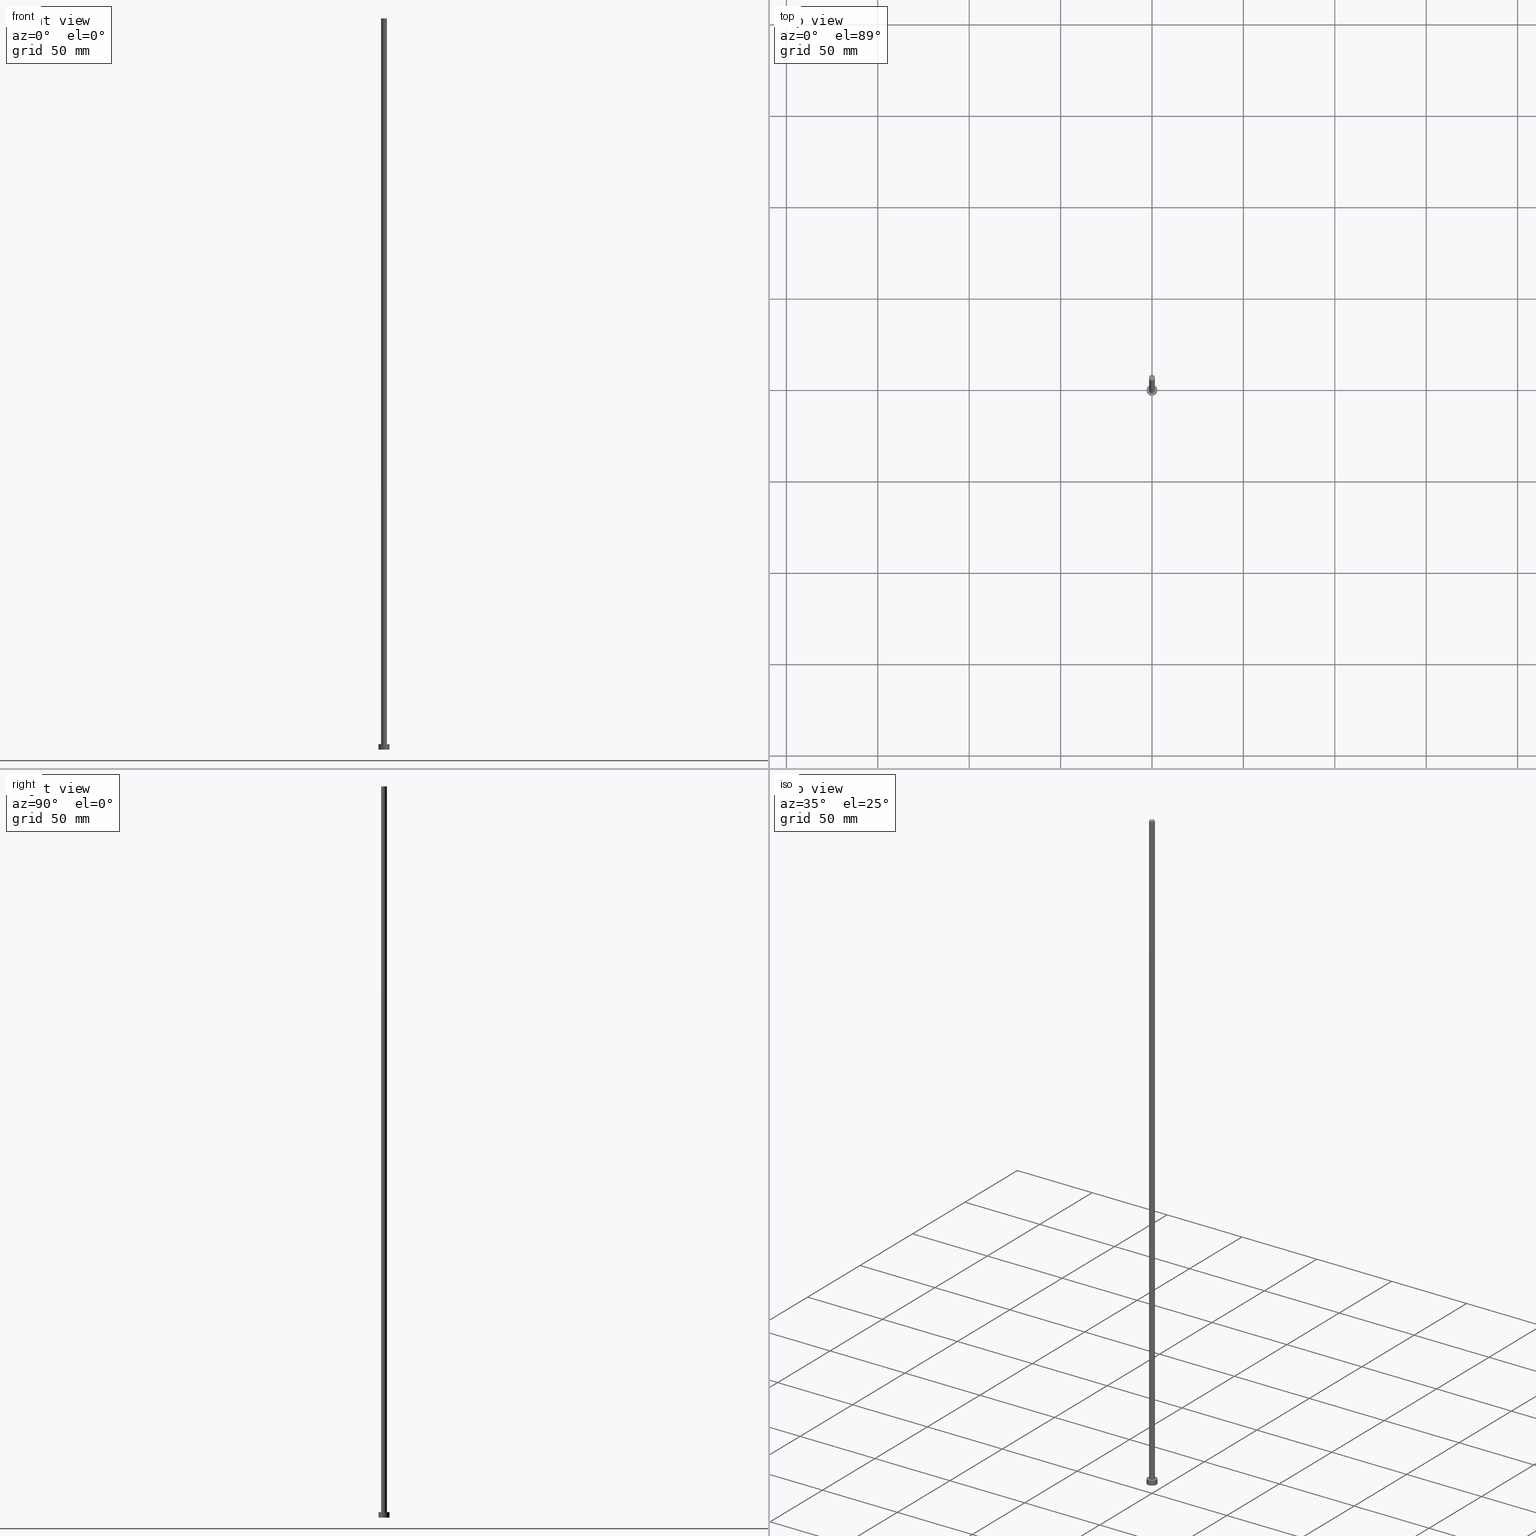
[diagram: canonical four-view strip — front | top / right | iso, engineering-drawing reading convention]
A machine part, canonical four-view strip (front | top / right | iso — engineering-drawing reading convention). The complete STEP part file that produces these views, byte-faithful:
ISO-10303-21;
HEADER;
FILE_DESCRIPTION (( 'STEP AP203' ),
    '1' );
FILE_NAME ('0637.STEP',
    '2023-02-12T12:43:47',
    ( '' ),
    ( '' ),
    'SwSTEP 2.0',
    'SolidWorks 2019',
    '' );
FILE_SCHEMA (( 'CONFIG_CONTROL_DESIGN' ));
ENDSEC;

DATA;
#1 = LINE ( 'NONE', #47, #206 ) ;
#2 = ORIENTED_EDGE ( 'NONE', *, *, #76, .T. ) ;
#3 = AXIS2_PLACEMENT_3D ( 'NONE', #122, #73, #79 ) ;
#4 = EDGE_CURVE ( 'NONE', #248, #210, #1, .T. ) ;
#5 = DIRECTION ( 'NONE',  ( -1.000000000000000000, 0.000000000000000000, 0.000000000000000000 ) ) ;
#6 = DIRECTION ( 'NONE',  ( 1.000000000000000000, 0.000000000000000000, 0.000000000000000000 ) ) ;
#7 =( NAMED_UNIT ( * ) SI_UNIT ( $, .STERADIAN. ) SOLID_ANGLE_UNIT ( ) );
#8 = APPROVAL_PERSON_ORGANIZATION ( #99, #132, #164 ) ;
#9 = DIRECTION ( 'NONE',  ( -0.000000000000000000, -0.000000000000000000, -1.000000000000000000 ) ) ;
#10 = PLANE ( 'NONE',  #171 ) ;
#11 = CARTESIAN_POINT ( 'NONE',  ( 0.000000000000000000, 0.000000000000000000, 3.000000000000000000 ) ) ;
#12 = AXIS2_PLACEMENT_3D ( 'NONE', #156, #111, #137 ) ;
#13 = APPLICATION_PROTOCOL_DEFINITION ( 'international standard', 'config_control_design', 1994, #108 ) ;
#14 = PERSON_AND_ORGANIZATION ( #16, #141 ) ;
#15 = ORIENTED_EDGE ( 'NONE', *, *, #40, .F. ) ;
#16 = PERSON ( 'NEUR�EN�', 'NEUR�EN�', 'NEUR�EN�', ('NEUR�EN�'), ('NEUR�EN�'), ('NEUR�EN�') ) ;
#17 = DIRECTION ( 'NONE',  ( 1.000000000000000000, 0.000000000000000000, 0.000000000000000000 ) ) ;
#18 = ORIENTED_EDGE ( 'NONE', *, *, #149, .T. ) ;
#19 = AXIS2_PLACEMENT_3D ( 'NONE', #11, #117, #135 ) ;
#20 = FACE_BOUND ( 'NONE', #238, .T. ) ;
#21 = CYLINDRICAL_SURFACE ( 'NONE', #38, 1.600000000000000089 ) ;
#22 = LOCAL_TIME ( 13, 43, 47.00000000000000000, #35 ) ;
#23 = CARTESIAN_POINT ( 'NONE',  ( 0.000000000000000000, 0.000000000000000000, 0.000000000000000000 ) ) ;
#24 = AXIS2_PLACEMENT_3D ( 'NONE', #151, #133, #211 ) ;
#25 = ADVANCED_FACE ( 'NONE', ( #20, #226 ), #109, .T. ) ;
#26 = DIRECTION ( 'NONE',  ( 1.000000000000000000, 0.000000000000000000, 0.000000000000000000 ) ) ;
#27 = CC_DESIGN_PERSON_AND_ORGANIZATION_ASSIGNMENT ( #56, #205, ( #44 ) ) ;
#28 = CARTESIAN_POINT ( 'NONE',  ( 0.000000000000000000, 0.000000000000000000, 0.000000000000000000 ) ) ;
#29 = PLANE ( 'NONE',  #143 ) ;
#30 = LINE ( 'NONE', #194, #123 ) ;
#31 = CC_DESIGN_PERSON_AND_ORGANIZATION_ASSIGNMENT ( #142, #162, ( #115 ) ) ;
#32 = CALENDAR_DATE ( 2023, 12, 2 ) ;
#33 = VECTOR ( 'NONE', #113, 1000.000000000000000 ) ;
#34 = PERSON_AND_ORGANIZATION_ROLE ( 'design_owner' ) ;
#35 = COORDINATED_UNIVERSAL_TIME_OFFSET ( 1, 0, .AHEAD. ) ;
#36 = APPROVAL_PERSON_ORGANIZATION ( #250, #69, #245 ) ;
#37 = LOCAL_TIME ( 13, 43, 47.00000000000000000, #160 ) ;
#38 = AXIS2_PLACEMENT_3D ( 'NONE', #110, #192, #5 ) ;
#39 = DIRECTION ( 'NONE',  ( 0.000000000000000000, 0.000000000000000000, 1.000000000000000000 ) ) ;
#40 = EDGE_CURVE ( 'NONE', #202, #239, #88, .T. ) ;
#41 = DIRECTION ( 'NONE',  ( 0.000000000000000000, 0.000000000000000000, 1.000000000000000000 ) ) ;
#42 = ORIENTED_EDGE ( 'NONE', *, *, #107, .F. ) ;
#43 = LOCAL_TIME ( 13, 43, 47.00000000000000000, #201 ) ;
#44 = PRODUCT_DEFINITION_FORMATION_WITH_SPECIFIED_SOURCE ( 'LIBOVOLN�', '', #112, .NOT_KNOWN. ) ;
#45 = AXIS2_PLACEMENT_3D ( 'NONE', #253, #41, #17 ) ;
#46 = EDGE_LOOP ( 'NONE', ( #15, #255, #2, #167 ) ) ;
#47 = CARTESIAN_POINT ( 'NONE',  ( -3.000000000000000444, 0.000000000000000000, 3.000000000000000000 ) ) ;
#48 = DIRECTION ( 'NONE',  ( 0.000000000000000000, 0.000000000000000000, 1.000000000000000000 ) ) ;
#49 = AXIS2_PLACEMENT_3D ( 'NONE', #191, #39, #66 ) ;
#50 = ADVANCED_FACE ( 'NONE', ( #127 ), #21, .T. ) ;
#51 = APPLICATION_CONTEXT ( 'configuration controlled 3d designs of mechanical parts and assemblies' ) ;
#52 = CARTESIAN_POINT ( 'NONE',  ( 0.000000000000000000, 0.000000000000000000, 3.000000000000000000 ) ) ;
#53 = CARTESIAN_POINT ( 'NONE',  ( 0.000000000000000000, 0.000000000000000000, 400.0000000000000000 ) ) ;
#54 = CIRCLE ( 'NONE', #247, 1.600000000000000089 ) ;
#55 = DATE_AND_TIME ( #178, #37 ) ;
#56 = PERSON_AND_ORGANIZATION ( #16, #141 ) ;
#57 = DATE_AND_TIME ( #236, #87 ) ;
#58 = DATE_TIME_ROLE ( 'creation_date' ) ;
#59 = CC_DESIGN_APPROVAL ( #69, ( #44 ) ) ;
#60 = AXIS2_PLACEMENT_3D ( 'NONE', #185, #237, #208 ) ;
#61 = ORIENTED_EDGE ( 'NONE', *, *, #190, .T. ) ;
#62 = VERTEX_POINT ( 'NONE', #104 ) ;
#63 = ORIENTED_EDGE ( 'NONE', *, *, #126, .T. ) ;
#64 = AXIS2_PLACEMENT_3D ( 'NONE', #116, #177, #91 ) ;
#65 = AXIS2_PLACEMENT_3D ( 'NONE', #95, #214, #6 ) ;
#66 = DIRECTION ( 'NONE',  ( 1.000000000000000000, 0.000000000000000000, -0.000000000000000000 ) ) ;
#67 = CARTESIAN_POINT ( 'NONE',  ( -1.600000000000000089, 0.000000000000000000, 400.0000000000000000 ) ) ;
#68 = ADVANCED_FACE ( 'NONE', ( #89 ), #172, .T. ) ;
#69 = APPROVAL ( #144, 'NEUR�EN�' ) ;
#70 = FACE_OUTER_BOUND ( 'NONE', #82, .T. ) ;
#71 = LINE ( 'NONE', #175, #227 ) ;
#72 = CARTESIAN_POINT ( 'NONE',  ( -3.000000000000000444, 0.000000000000000000, 0.000000000000000000 ) ) ;
#73 = DIRECTION ( 'NONE',  ( 0.000000000000000000, 0.000000000000000000, 1.000000000000000000 ) ) ;
#74 = CC_DESIGN_PERSON_AND_ORGANIZATION_ASSIGNMENT ( #158, #233, ( #78 ) ) ;
#75 = CALENDAR_DATE ( 2023, 12, 2 ) ;
#76 = EDGE_CURVE ( 'NONE', #150, #209, #103, .T. ) ;
#77 = SECURITY_CLASSIFICATION_LEVEL ( 'unclassified' ) ;
#78 = SECURITY_CLASSIFICATION ( '', '', #77 ) ;
#79 = DIRECTION ( 'NONE',  ( 1.000000000000000000, 0.000000000000000000, 0.000000000000000000 ) ) ;
#80 = ORIENTED_EDGE ( 'NONE', *, *, #222, .F. ) ;
#81 = EDGE_CURVE ( 'NONE', #248, #62, #232, .T. ) ;
#82 = EDGE_LOOP ( 'NONE', ( #61, #120 ) ) ;
#83 = DIRECTION ( 'NONE',  ( -0.000000000000000000, -0.000000000000000000, -1.000000000000000000 ) ) ;
#84 = CC_DESIGN_PERSON_AND_ORGANIZATION_ASSIGNMENT ( #102, #34, ( #112 ) ) ;
#85 = ADVANCED_FACE ( 'NONE', ( #70 ), #29, .T. ) ;
#86 = ORIENTED_EDGE ( 'NONE', *, *, #107, .T. ) ;
#87 = LOCAL_TIME ( 13, 43, 47.00000000000000000, #182 ) ;
#88 = CIRCLE ( 'NONE', #24, 1.600000000000000089 ) ;
#89 = FACE_OUTER_BOUND ( 'NONE', #145, .T. ) ;
#90 = ADVANCED_FACE ( 'NONE', ( #153 ), #242, .T. ) ;
#91 = DIRECTION ( 'NONE',  ( 1.000000000000000000, 0.000000000000000000, 0.000000000000000000 ) ) ;
#92 = CARTESIAN_POINT ( 'NONE',  ( -3.000000000000000444, 0.000000000000000000, 3.000000000000000000 ) ) ;
#93 = APPROVAL_PERSON_ORGANIZATION ( #139, #165, #218 ) ;
#94 = DIRECTION ( 'NONE',  ( -0.000000000000000000, -0.000000000000000000, -1.000000000000000000 ) ) ;
#95 = CARTESIAN_POINT ( 'NONE',  ( 0.000000000000000000, 0.000000000000000000, 3.000000000000000000 ) ) ;
#96 = DIRECTION ( 'NONE',  ( -0.000000000000000000, -0.000000000000000000, -1.000000000000000000 ) ) ;
#97 = ADVANCED_FACE ( 'NONE', ( #114 ), #243, .T. ) ;
#98 = CLOSED_SHELL ( 'NONE', ( #97, #68, #90, #25, #124, #50, #85 ) ) ;
#99 = PERSON_AND_ORGANIZATION ( #16, #141 ) ;
#100 = CIRCLE ( 'NONE', #12, 3.000000000000000444 ) ;
#101 = UNCERTAINTY_MEASURE_WITH_UNIT (LENGTH_MEASURE( 1.000000000000000082E-05 ), #229, 'distance_accuracy_value', 'NONE');
#102 = PERSON_AND_ORGANIZATION ( #16, #141 ) ;
#103 = CIRCLE ( 'NONE', #45, 1.600000000000000089 ) ;
#104 = CARTESIAN_POINT ( 'NONE',  ( 3.000000000000000444, 3.673940397442060361E-16, 3.000000000000000000 ) ) ;
#105 = ORIENTED_EDGE ( 'NONE', *, *, #147, .T. ) ;
#106 = ORIENTED_EDGE ( 'NONE', *, *, #81, .T. ) ;
#107 = EDGE_CURVE ( 'NONE', #62, #179, #71, .T. ) ;
#108 = APPLICATION_CONTEXT ( 'configuration controlled 3d designs of mechanical parts and assemblies' ) ;
#109 = PLANE ( 'NONE',  #49 ) ;
#110 = CARTESIAN_POINT ( 'NONE',  ( 0.000000000000000000, 0.000000000000000000, 400.0000000000000000 ) ) ;
#111 = DIRECTION ( 'NONE',  ( 0.000000000000000000, 0.000000000000000000, 1.000000000000000000 ) ) ;
#112 = PRODUCT ( '0637', '0637', '', ( #219 ) ) ;
#113 = DIRECTION ( 'NONE',  ( -0.000000000000000000, -0.000000000000000000, -1.000000000000000000 ) ) ;
#114 = FACE_OUTER_BOUND ( 'NONE', #46, .T. ) ;
#115 = PRODUCT_DEFINITION ( 'NEZN�M�', '', #44, #163 ) ;
#116 = CARTESIAN_POINT ( 'NONE',  ( 0.000000000000000000, 0.000000000000000000, 400.0000000000000000 ) ) ;
#117 = DIRECTION ( 'NONE',  ( -0.000000000000000000, -0.000000000000000000, -1.000000000000000000 ) ) ;
#118 = DATE_AND_TIME ( #32, #43 ) ;
#119 = DATE_AND_TIME ( #75, #161 ) ;
#120 = ORIENTED_EDGE ( 'NONE', *, *, #40, .T. ) ;
#121 = APPROVAL_STATUS ( 'not_yet_approved' ) ;
#122 = CARTESIAN_POINT ( 'NONE',  ( 0.000000000000000000, 0.000000000000000000, 0.000000000000000000 ) ) ;
#123 = VECTOR ( 'NONE', #96, 1000.000000000000000 ) ;
#124 = ADVANCED_FACE ( 'NONE', ( #231 ), #10, .F. ) ;
#125 = CALENDAR_DATE ( 2023, 12, 2 ) ;
#126 = EDGE_CURVE ( 'NONE', #209, #150, #54, .T. ) ;
#127 = FACE_OUTER_BOUND ( 'NONE', #169, .T. ) ;
#128 = ORIENTED_EDGE ( 'NONE', *, *, #149, .F. ) ;
#129 = ORIENTED_EDGE ( 'NONE', *, *, #126, .F. ) ;
#130 = EDGE_LOOP ( 'NONE', ( #166, #128 ) ) ;
#131 = CC_DESIGN_PERSON_AND_ORGANIZATION_ASSIGNMENT ( #14, #249, ( #44 ) ) ;
#132 = APPROVAL ( #121, 'NEUR�EN�' ) ;
#133 = DIRECTION ( 'NONE',  ( 0.000000000000000000, 0.000000000000000000, 1.000000000000000000 ) ) ;
#134 = LINE ( 'NONE', #230, #33 ) ;
#135 = DIRECTION ( 'NONE',  ( -1.000000000000000000, 0.000000000000000000, 0.000000000000000000 ) ) ;
#136 = DIRECTION ( 'NONE',  ( 1.000000000000000000, 0.000000000000000000, -0.000000000000000000 ) ) ;
#137 = DIRECTION ( 'NONE',  ( 1.000000000000000000, 0.000000000000000000, 0.000000000000000000 ) ) ;
#138 = AXIS2_PLACEMENT_3D ( 'NONE', #53, #9, #199 ) ;
#139 = PERSON_AND_ORGANIZATION ( #16, #141 ) ;
#140 = DATE_AND_TIME ( #125, #22 ) ;
#141 = ORGANIZATION ( 'NEUR�EN�', 'NEUR�EN�', '' ) ;
#142 = PERSON_AND_ORGANIZATION ( #16, #141 ) ;
#143 = AXIS2_PLACEMENT_3D ( 'NONE', #196, #212, #136 ) ;
#144 = APPROVAL_STATUS ( 'not_yet_approved' ) ;
#145 = EDGE_LOOP ( 'NONE', ( #223, #86, #18, #224 ) ) ;
#146 = ORIENTED_EDGE ( 'NONE', *, *, #155, .T. ) ;
#147 = EDGE_CURVE ( 'NONE', #210, #179, #198, .T. ) ;
#148 = EDGE_LOOP ( 'NONE', ( #42, #168, #187, #105 ) ) ;
#149 = EDGE_CURVE ( 'NONE', #179, #210, #100, .T. ) ;
#150 = VERTEX_POINT ( 'NONE', #176 ) ;
#151 = CARTESIAN_POINT ( 'NONE',  ( 0.000000000000000000, 0.000000000000000000, 400.0000000000000000 ) ) ;
#152 =( NAMED_UNIT ( * ) PLANE_ANGLE_UNIT ( ) SI_UNIT ( $, .RADIAN. ) );
#153 = FACE_OUTER_BOUND ( 'NONE', #148, .T. ) ;
#154 = DIRECTION ( 'NONE',  ( 1.000000000000000000, 0.000000000000000000, -0.000000000000000000 ) ) ;
#155 = EDGE_CURVE ( 'NONE', #239, #209, #134, .T. ) ;
#156 = CARTESIAN_POINT ( 'NONE',  ( 0.000000000000000000, 0.000000000000000000, 0.000000000000000000 ) ) ;
#157 = CC_DESIGN_APPROVAL ( #132, ( #115 ) ) ;
#158 = PERSON_AND_ORGANIZATION ( #16, #141 ) ;
#159 = APPROVAL_DATE_TIME ( #118, #165 ) ;
#160 = COORDINATED_UNIVERSAL_TIME_OFFSET ( 1, 0, .AHEAD. ) ;
#161 = LOCAL_TIME ( 13, 43, 47.00000000000000000, #180 ) ;
#162 = PERSON_AND_ORGANIZATION_ROLE ( 'creator' ) ;
#163 = DESIGN_CONTEXT ( 'detailed design', #108, 'design' ) ;
#164 = APPROVAL_ROLE ( '' ) ;
#165 = APPROVAL ( #221, 'NEUR�EN�' ) ;
#166 = ORIENTED_EDGE ( 'NONE', *, *, #147, .F. ) ;
#167 = ORIENTED_EDGE ( 'NONE', *, *, #155, .F. ) ;
#168 = ORIENTED_EDGE ( 'NONE', *, *, #81, .F. ) ;
#169 = EDGE_LOOP ( 'NONE', ( #80, #228, #146, #63 ) ) ;
#170 = MANIFOLD_SOLID_BREP ( 'P�idat vysunut�m3', #98 ) ;
#171 = AXIS2_PLACEMENT_3D ( 'NONE', #28, #240, #154 ) ;
#172 = CYLINDRICAL_SURFACE ( 'NONE', #60, 3.000000000000000444 ) ;
#173 = CARTESIAN_POINT ( 'NONE',  ( -1.600000000000000089, 0.000000000000000000, 3.000000000000000000 ) ) ;
#174 = PRODUCT_DEFINITION_SHAPE ( 'NONE', 'NONE',  #115 ) ;
#175 = CARTESIAN_POINT ( 'NONE',  ( 3.000000000000000444, 3.673940397442060361E-16, 3.000000000000000000 ) ) ;
#176 = CARTESIAN_POINT ( 'NONE',  ( 1.600000000000000089, 1.959434878635765230E-16, 3.000000000000000000 ) ) ;
#177 = DIRECTION ( 'NONE',  ( 0.000000000000000000, 0.000000000000000000, 1.000000000000000000 ) ) ;
#178 = CALENDAR_DATE ( 2023, 12, 2 ) ;
#179 = VERTEX_POINT ( 'NONE', #241 ) ;
#180 = COORDINATED_UNIVERSAL_TIME_OFFSET ( 1, 0, .AHEAD. ) ;
#181 = EDGE_CURVE ( 'NONE', #62, #248, #215, .T. ) ;
#182 = COORDINATED_UNIVERSAL_TIME_OFFSET ( 1, 0, .AHEAD. ) ;
#183 = AXIS2_PLACEMENT_3D ( 'NONE', #23, #193, #217 ) ;
#184 = APPLICATION_PROTOCOL_DEFINITION ( 'international standard', 'config_control_design', 1994, #51 ) ;
#185 = CARTESIAN_POINT ( 'NONE',  ( 0.000000000000000000, 0.000000000000000000, 3.000000000000000000 ) ) ;
#186 = CIRCLE ( 'NONE', #64, 1.600000000000000089 ) ;
#187 = ORIENTED_EDGE ( 'NONE', *, *, #4, .T. ) ;
#188 = AXIS2_PLACEMENT_3D ( 'NONE', #52, #200, #26 ) ;
#189 = ORIENTED_EDGE ( 'NONE', *, *, #76, .F. ) ;
#190 = EDGE_CURVE ( 'NONE', #239, #202, #186, .T. ) ;
#191 = CARTESIAN_POINT ( 'NONE',  ( 0.000000000000000000, 0.000000000000000000, 3.000000000000000000 ) ) ;
#192 = DIRECTION ( 'NONE',  ( -0.000000000000000000, -0.000000000000000000, -1.000000000000000000 ) ) ;
#193 = DIRECTION ( 'NONE',  ( 0.000000000000000000, 0.000000000000000000, 1.000000000000000000 ) ) ;
#194 = CARTESIAN_POINT ( 'NONE',  ( 1.600000000000000089, 1.959434878635765230E-16, 400.0000000000000000 ) ) ;
#195 = CC_DESIGN_APPROVAL ( #165, ( #78 ) ) ;
#196 = CARTESIAN_POINT ( 'NONE',  ( 0.000000000000000000, 0.000000000000000000, 400.0000000000000000 ) ) ;
#197 =( GEOMETRIC_REPRESENTATION_CONTEXT ( 3 ) GLOBAL_UNCERTAINTY_ASSIGNED_CONTEXT ( ( #101 ) ) GLOBAL_UNIT_ASSIGNED_CONTEXT ( ( #229, #152, #7 ) ) REPRESENTATION_CONTEXT ( 'NONE', 'WORKASPACE' ) );
#198 = CIRCLE ( 'NONE', #183, 3.000000000000000444 ) ;
#199 = DIRECTION ( 'NONE',  ( -1.000000000000000000, 0.000000000000000000, 0.000000000000000000 ) ) ;
#200 = DIRECTION ( 'NONE',  ( 0.000000000000000000, 0.000000000000000000, 1.000000000000000000 ) ) ;
#201 = COORDINATED_UNIVERSAL_TIME_OFFSET ( 1, 0, .AHEAD. ) ;
#202 = VERTEX_POINT ( 'NONE', #244 ) ;
#203 = APPROVAL_DATE_TIME ( #140, #69 ) ;
#204 = SHAPE_DEFINITION_REPRESENTATION ( #174, #246 ) ;
#205 = PERSON_AND_ORGANIZATION_ROLE ( 'creator' ) ;
#206 = VECTOR ( 'NONE', #83, 1000.000000000000000 ) ;
#207 = EDGE_LOOP ( 'NONE', ( #106, #225 ) ) ;
#208 = DIRECTION ( 'NONE',  ( -1.000000000000000000, 0.000000000000000000, 0.000000000000000000 ) ) ;
#209 = VERTEX_POINT ( 'NONE', #173 ) ;
#210 = VERTEX_POINT ( 'NONE', #72 ) ;
#211 = DIRECTION ( 'NONE',  ( 1.000000000000000000, 0.000000000000000000, 0.000000000000000000 ) ) ;
#212 = DIRECTION ( 'NONE',  ( 0.000000000000000000, 0.000000000000000000, 1.000000000000000000 ) ) ;
#213 = DIRECTION ( 'NONE',  ( 1.000000000000000000, 0.000000000000000000, 0.000000000000000000 ) ) ;
#214 = DIRECTION ( 'NONE',  ( 0.000000000000000000, 0.000000000000000000, 1.000000000000000000 ) ) ;
#215 = CIRCLE ( 'NONE', #65, 3.000000000000000444 ) ;
#216 = CARTESIAN_POINT ( 'NONE',  ( 0.000000000000000000, 0.000000000000000000, 3.000000000000000000 ) ) ;
#217 = DIRECTION ( 'NONE',  ( 1.000000000000000000, 0.000000000000000000, 0.000000000000000000 ) ) ;
#218 = APPROVAL_ROLE ( '' ) ;
#219 = MECHANICAL_CONTEXT ( 'NONE', #51, 'mechanical' ) ;
#220 = PRODUCT_RELATED_PRODUCT_CATEGORY ( 'detail', '', ( #112 ) ) ;
#221 = APPROVAL_STATUS ( 'not_yet_approved' ) ;
#222 = EDGE_CURVE ( 'NONE', #202, #150, #30, .T. ) ;
#223 = ORIENTED_EDGE ( 'NONE', *, *, #181, .F. ) ;
#224 = ORIENTED_EDGE ( 'NONE', *, *, #4, .F. ) ;
#225 = ORIENTED_EDGE ( 'NONE', *, *, #181, .T. ) ;
#226 = FACE_OUTER_BOUND ( 'NONE', #207, .T. ) ;
#227 = VECTOR ( 'NONE', #94, 1000.000000000000000 ) ;
#228 = ORIENTED_EDGE ( 'NONE', *, *, #190, .F. ) ;
#229 =( LENGTH_UNIT ( ) NAMED_UNIT ( * ) SI_UNIT ( .MILLI., .METRE. ) );
#230 = CARTESIAN_POINT ( 'NONE',  ( -1.600000000000000089, 0.000000000000000000, 400.0000000000000000 ) ) ;
#231 = FACE_OUTER_BOUND ( 'NONE', #130, .T. ) ;
#232 = CIRCLE ( 'NONE', #188, 3.000000000000000444 ) ;
#233 = PERSON_AND_ORGANIZATION_ROLE ( 'classification_officer' ) ;
#234 = CC_DESIGN_DATE_AND_TIME_ASSIGNMENT ( #55, #235, ( #78 ) ) ;
#235 = DATE_TIME_ROLE ( 'classification_date' ) ;
#236 = CALENDAR_DATE ( 2023, 12, 2 ) ;
#237 = DIRECTION ( 'NONE',  ( -0.000000000000000000, -0.000000000000000000, -1.000000000000000000 ) ) ;
#238 = EDGE_LOOP ( 'NONE', ( #129, #189 ) ) ;
#239 = VERTEX_POINT ( 'NONE', #67 ) ;
#240 = DIRECTION ( 'NONE',  ( 0.000000000000000000, 0.000000000000000000, 1.000000000000000000 ) ) ;
#241 = CARTESIAN_POINT ( 'NONE',  ( 3.000000000000000444, 3.673940397442060361E-16, 0.000000000000000000 ) ) ;
#242 = CYLINDRICAL_SURFACE ( 'NONE', #19, 3.000000000000000444 ) ;
#243 = CYLINDRICAL_SURFACE ( 'NONE', #138, 1.600000000000000089 ) ;
#244 = CARTESIAN_POINT ( 'NONE',  ( 1.600000000000000089, 1.959434878635765230E-16, 400.0000000000000000 ) ) ;
#245 = APPROVAL_ROLE ( '' ) ;
#246 = ADVANCED_BREP_SHAPE_REPRESENTATION ( '0637', ( #170, #3 ), #197 ) ;
#247 = AXIS2_PLACEMENT_3D ( 'NONE', #216, #48, #213 ) ;
#248 = VERTEX_POINT ( 'NONE', #92 ) ;
#249 = PERSON_AND_ORGANIZATION_ROLE ( 'design_supplier' ) ;
#250 = PERSON_AND_ORGANIZATION ( #16, #141 ) ;
#251 = CC_DESIGN_SECURITY_CLASSIFICATION ( #78, ( #44 ) ) ;
#252 = APPROVAL_DATE_TIME ( #57, #132 ) ;
#253 = CARTESIAN_POINT ( 'NONE',  ( 0.000000000000000000, 0.000000000000000000, 3.000000000000000000 ) ) ;
#254 = CC_DESIGN_DATE_AND_TIME_ASSIGNMENT ( #119, #58, ( #115 ) ) ;
#255 = ORIENTED_EDGE ( 'NONE', *, *, #222, .T. ) ;
ENDSEC;
END-ISO-10303-21;
